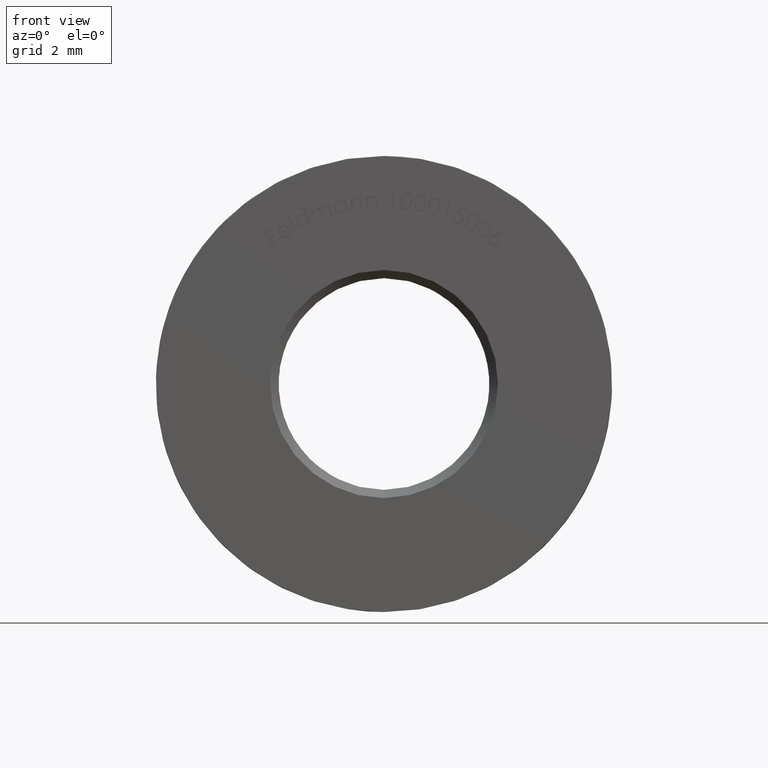
[diagram: clean part render]
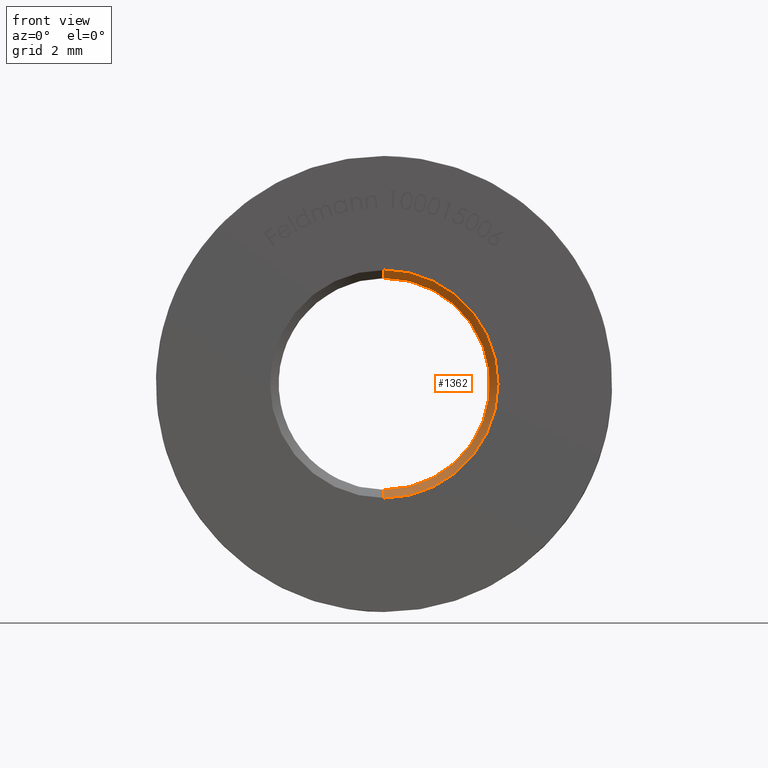
[diagram: same view with one face highlighted and labeled with its STEP entity id]
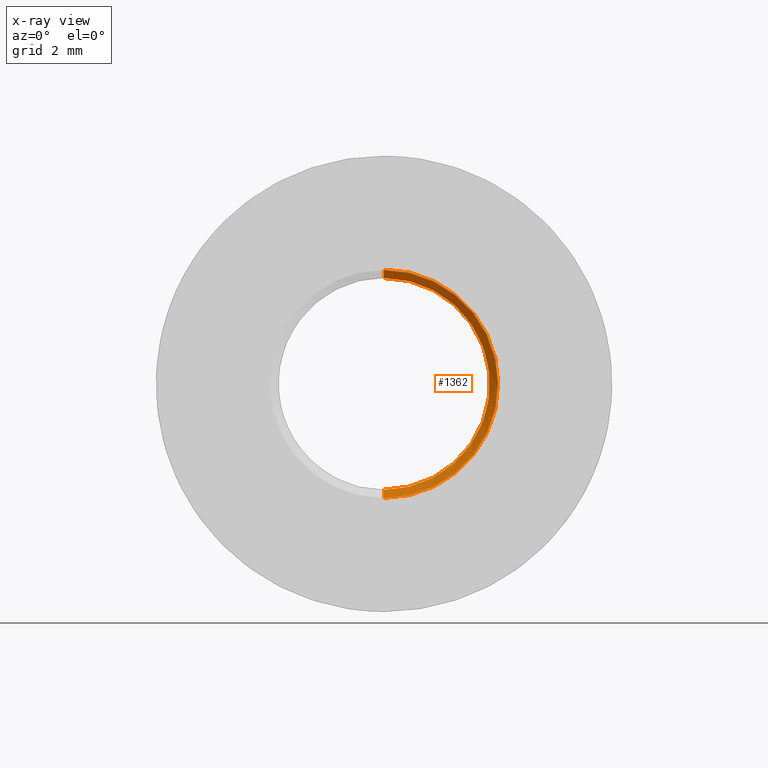
[diagram: x-ray of the same camera — body ghosted, the highlighted face saturated]
A machine part, front view. The second image highlights one B-rep face of the part: STEP entity #1362.
The next image is the same camera in x-ray: the body ghosted, the highlighted face saturated — about 0% of this face is hidden behind the body in this view.
In plain terms, the highlighted conical surface has half-angle 45 deg.
Its self-contained STEP definition (entity closure, byte-faithful):
#1001 = CARTESIAN_POINT ( 'NONE',  ( 4.286263797015731700E-016, 0.0000000000000000000, 3.499999999999996000 ) ) ;
#1362 = ADVANCED_FACE ( 'NONE', ( #7080 ), #11621, .F. ) ;
#1484 = LINE ( 'NONE', #2452, #8324 ) ;
#1512 = ORIENTED_EDGE ( 'NONE', *, *, #11752, .F. ) ;
#1752 = DIRECTION ( 'NONE',  ( 0.0000000000000000000, 1.000000000000000000, 0.0000000000000000000 ) ) ;
#2112 = CIRCLE ( 'NONE', #6391, 3.250000000000000400 ) ;
#2452 = CARTESIAN_POINT ( 'NONE',  ( 0.0000000000000000000, 0.2499999999999967500, -3.250000000000000400 ) ) ;
#2857 = AXIS2_PLACEMENT_3D ( 'NONE', #6221, #9450, #3073 ) ;
#2901 = ORIENTED_EDGE ( 'NONE', *, *, #5418, .F. ) ;
#3073 = DIRECTION ( 'NONE',  ( 0.0000000000000000000, 0.0000000000000000000, -1.000000000000000000 ) ) ;
#4794 = CARTESIAN_POINT ( 'NONE',  ( 3.980102097228898200E-016, 0.2499999999999967500, 3.250000000000000400 ) ) ;
#5401 = CARTESIAN_POINT ( 'NONE',  ( 0.0000000000000000000, 0.2499999999999967500, 0.0000000000000000000 ) ) ;
#5418 = EDGE_CURVE ( 'NONE', #7263, #12084, #12300, .T. ) ;
#5774 = DIRECTION ( 'NONE',  ( 0.0000000000000000000, -0.7071067811865487900, -0.7071067811865463500 ) ) ;
#5838 = EDGE_CURVE ( 'NONE', #12084, #13076, #12144, .T. ) ;
#6221 = CARTESIAN_POINT ( 'NONE',  ( 0.0000000000000000000, 0.2499999999999967500, 0.0000000000000000000 ) ) ;
#6235 = VERTEX_POINT ( 'NONE', #7922 ) ;
#6391 = AXIS2_PLACEMENT_3D ( 'NONE', #5401, #8643, #11847 ) ;
#6655 = EDGE_LOOP ( 'NONE', ( #2901, #1512, #9760, #8321 ) ) ;
#6898 = CARTESIAN_POINT ( 'NONE',  ( 0.0000000000000000000, 0.0000000000000000000, 0.0000000000000000000 ) ) ;
#7080 = FACE_OUTER_BOUND ( 'NONE', #6655, .T. ) ;
#7263 = VERTEX_POINT ( 'NONE', #12228 ) ;
#7922 = CARTESIAN_POINT ( 'NONE',  ( 0.0000000000000000000, 0.2499999999999967500, -3.250000000000000400 ) ) ;
#8321 = ORIENTED_EDGE ( 'NONE', *, *, #5838, .F. ) ;
#8324 = VECTOR ( 'NONE', #5774, 1000.000000000000000 ) ;
#8643 = DIRECTION ( 'NONE',  ( 0.0000000000000000000, -1.000000000000000000, 0.0000000000000000000 ) ) ;
#9117 = EDGE_CURVE ( 'NONE', #6235, #13076, #1484, .T. ) ;
#9450 = DIRECTION ( 'NONE',  ( 0.0000000000000000000, -1.000000000000000000, 0.0000000000000000000 ) ) ;
#9760 = ORIENTED_EDGE ( 'NONE', *, *, #9117, .T. ) ;
#10305 = AXIS2_PLACEMENT_3D ( 'NONE', #6898, #1752, #12185 ) ;
#10534 = CARTESIAN_POINT ( 'NONE',  ( 0.0000000000000000000, 0.0000000000000000000, -3.499999999999996000 ) ) ;
#11621 = CONICAL_SURFACE ( 'NONE', #2857, 3.250000000000000400, 0.7853981633974466100 ) ;
#11752 = EDGE_CURVE ( 'NONE', #6235, #7263, #2112, .T. ) ;
#11847 = DIRECTION ( 'NONE',  ( 0.0000000000000000000, 0.0000000000000000000, 1.000000000000000000 ) ) ;
#12084 = VERTEX_POINT ( 'NONE', #1001 ) ;
#12111 = DIRECTION ( 'NONE',  ( 8.659560562354918100E-017, -0.7071067811865487900, 0.7071067811865463500 ) ) ;
#12144 = CIRCLE ( 'NONE', #10305, 3.499999999999996000 ) ;
#12185 = DIRECTION ( 'NONE',  ( 0.0000000000000000000, 0.0000000000000000000, 1.000000000000000000 ) ) ;
#12228 = CARTESIAN_POINT ( 'NONE',  ( 3.980102097228898200E-016, 0.2499999999999967500, 3.250000000000000400 ) ) ;
#12300 = LINE ( 'NONE', #4794, #13281 ) ;
#13076 = VERTEX_POINT ( 'NONE', #10534 ) ;
#13281 = VECTOR ( 'NONE', #12111, 1000.000000000000000 ) ;